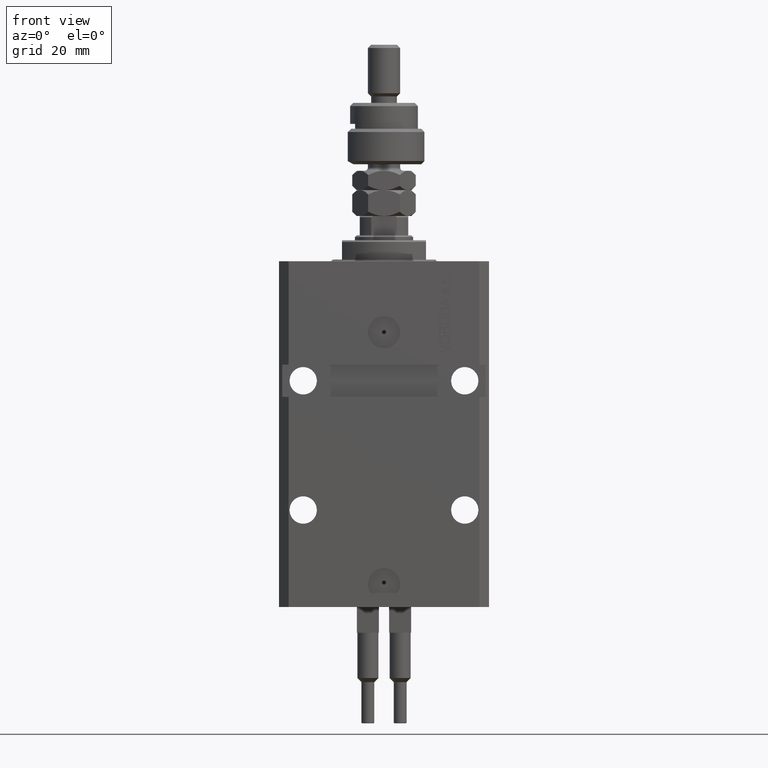
[diagram: clean part render]
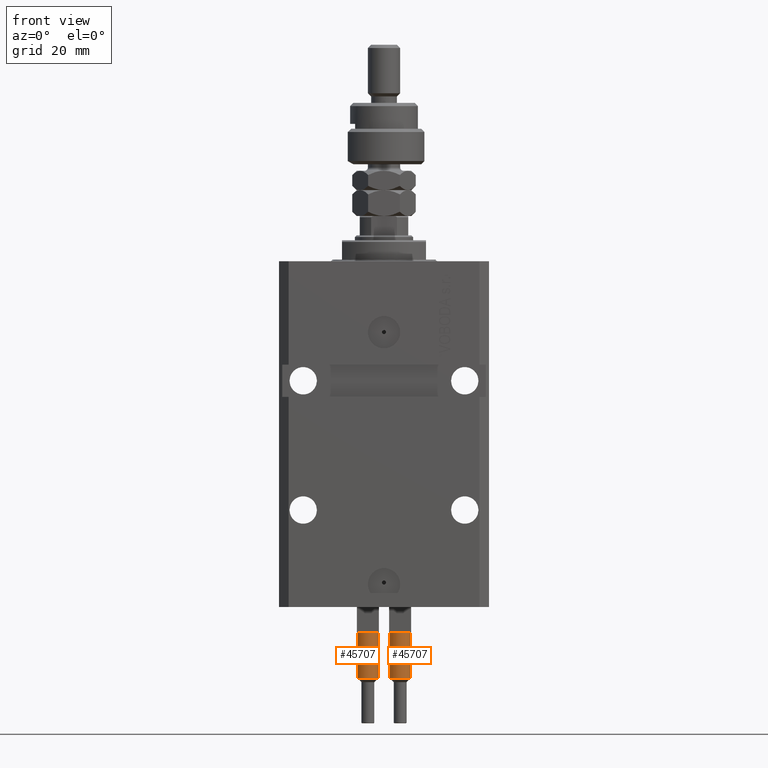
[diagram: same view with one multi-face feature highlighted, each face labeled with its STEP entity id]
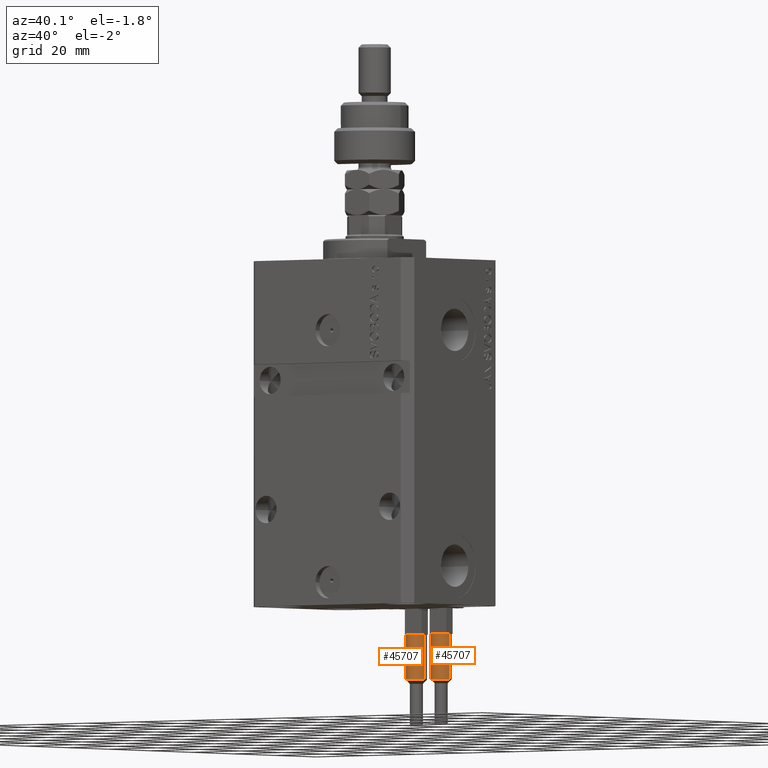
[diagram: same view with one multi-face feature highlighted, each face labeled with its STEP entity id]
A machine part, front view. The highlighted faces form ONE feature: a constant-radius fillet chain: 2 tangent blend faces with common blend radius 3.25 mm. The faces share edges in the B-rep.
A second angle (auxiliary view) of the same feature is appended — it is thin or edge-on in the first view.
Their STEP definitions:
[1] entity #45707 (Cylinder):
#640 = ORIENTED_EDGE ( 'NONE', *, *, #11287, .T. ) ;
#790 = VERTEX_POINT ( 'NONE', #22565 ) ;
#1418 = VERTEX_POINT ( 'NONE', #5297 ) ;
#2662 = CARTESIAN_POINT ( 'NONE',  ( 0.000000000000000000, 0.000000000000000000, 40.00000000000000000 ) ) ;
#2672 = CARTESIAN_POINT ( 'NONE',  ( 3.250000000000000444, 3.980102097228898231E-16, 56.00000000000000000 ) ) ;
#3326 = LINE ( 'NONE', #42943, #11230 ) ;
#4508 = CIRCLE ( 'NONE', #17954, 3.250000000000000444 ) ;
#5297 = CARTESIAN_POINT ( 'NONE',  ( 3.250000000000000444, 3.980102097228898231E-16, 40.00000000000000000 ) ) ;
#5460 = AXIS2_PLACEMENT_3D ( 'NONE', #20788, #16056, #16585 ) ;
#5740 = CARTESIAN_POINT ( 'NONE',  ( 0.000000000000000000, 0.000000000000000000, 56.00000000000000000 ) ) ;
#8593 = VECTOR ( 'NONE', #26794, 1000.000000000000000 ) ;
#9326 = EDGE_CURVE ( 'NONE', #15706, #1418, #22379, .T. ) ;
#11230 = VECTOR ( 'NONE', #26942, 1000.000000000000000 ) ;
#11287 = EDGE_CURVE ( 'NONE', #20690, #1418, #4508, .T. ) ;
#12510 = CARTESIAN_POINT ( 'NONE',  ( 3.250000000000000444, 3.980102097228898231E-16, 53.99999999999998579 ) ) ;
#12687 = DIRECTION ( 'NONE',  ( 1.000000000000000000, 0.000000000000000000, 0.000000000000000000 ) ) ;
#14197 = EDGE_CURVE ( 'NONE', #15706, #49121, #14672, .T. ) ;
#14672 = CIRCLE ( 'NONE', #5460, 3.250000000000000444 ) ;
#15706 = VERTEX_POINT ( 'NONE', #12510 ) ;
#15988 = CARTESIAN_POINT ( 'NONE',  ( 2.883140648667699146, -1.500000000000000000, 40.00000000000000000 ) ) ;
#16056 = DIRECTION ( 'NONE',  ( 0.000000000000000000, 0.000000000000000000, -1.000000000000000000 ) ) ;
#16585 = DIRECTION ( 'NONE',  ( 1.000000000000000000, 0.000000000000000000, 0.000000000000000000 ) ) ;
#17693 = DIRECTION ( 'NONE',  ( 0.000000000000000000, 0.000000000000000000, 1.000000000000000000 ) ) ;
#17844 = EDGE_CURVE ( 'NONE', #30725, #790, #20601, .T. ) ;
#17954 = AXIS2_PLACEMENT_3D ( 'NONE', #39939, #36506, #23423 ) ;
#19025 = EDGE_CURVE ( 'NONE', #790, #20690, #47367, .T. ) ;
#20601 = CIRCLE ( 'NONE', #49031, 3.250000000000000444 ) ;
#20690 = VERTEX_POINT ( 'NONE', #15988 ) ;
#20788 = CARTESIAN_POINT ( 'NONE',  ( 0.000000000000000000, 0.000000000000000000, 53.99999999999998579 ) ) ;
#21758 = DIRECTION ( 'NONE',  ( -1.000000000000000000, 0.000000000000000000, 0.000000000000000000 ) ) ;
#22096 = DIRECTION ( 'NONE',  ( 1.000000000000000000, 0.000000000000000000, 0.000000000000000000 ) ) ;
#22379 = LINE ( 'NONE', #2672, #8593 ) ;
#22565 = CARTESIAN_POINT ( 'NONE',  ( -2.883140648667699146, -1.500000000000000000, 40.00000000000000000 ) ) ;
#23423 = DIRECTION ( 'NONE',  ( 1.000000000000000000, 0.000000000000000000, 0.000000000000000000 ) ) ;
#23644 = EDGE_LOOP ( 'NONE', ( #50450, #36138, #36727, #37573, #43358, #640 ) ) ;
#25682 = CYLINDRICAL_SURFACE ( 'NONE', #30915, 3.250000000000000444 ) ;
#26013 = DIRECTION ( 'NONE',  ( 0.000000000000000000, 0.000000000000000000, 1.000000000000000000 ) ) ;
#26794 = DIRECTION ( 'NONE',  ( -0.000000000000000000, -0.000000000000000000, -1.000000000000000000 ) ) ;
#26942 = DIRECTION ( 'NONE',  ( -0.000000000000000000, -0.000000000000000000, -1.000000000000000000 ) ) ;
#29590 = FACE_OUTER_BOUND ( 'NONE', #23644, .T. ) ;
#30725 = VERTEX_POINT ( 'NONE', #31649 ) ;
#30915 = AXIS2_PLACEMENT_3D ( 'NONE', #5740, #46377, #21758 ) ;
#31649 = CARTESIAN_POINT ( 'NONE',  ( -3.250000000000000444, 0.000000000000000000, 40.00000000000000000 ) ) ;
#35671 = AXIS2_PLACEMENT_3D ( 'NONE', #2662, #26013, #22096 ) ;
#36138 = ORIENTED_EDGE ( 'NONE', *, *, #14197, .T. ) ;
#36506 = DIRECTION ( 'NONE',  ( 0.000000000000000000, 0.000000000000000000, 1.000000000000000000 ) ) ;
#36727 = ORIENTED_EDGE ( 'NONE', *, *, #48099, .T. ) ;
#37368 = CARTESIAN_POINT ( 'NONE',  ( 0.000000000000000000, 0.000000000000000000, 40.00000000000000000 ) ) ;
#37573 = ORIENTED_EDGE ( 'NONE', *, *, #17844, .T. ) ;
#39939 = CARTESIAN_POINT ( 'NONE',  ( 0.000000000000000000, 0.000000000000000000, 40.00000000000000000 ) ) ;
#42943 = CARTESIAN_POINT ( 'NONE',  ( -3.250000000000000444, 0.000000000000000000, 56.00000000000000000 ) ) ;
#43358 = ORIENTED_EDGE ( 'NONE', *, *, #19025, .T. ) ;
#45707 = ADVANCED_FACE ( 'NONE', ( #29590 ), #25682, .T. ) ;
#46377 = DIRECTION ( 'NONE',  ( -0.000000000000000000, -0.000000000000000000, -1.000000000000000000 ) ) ;
#47367 = CIRCLE ( 'NONE', #35671, 3.250000000000000444 ) ;
#48099 = EDGE_CURVE ( 'NONE', #49121, #30725, #3326, .T. ) ;
#49031 = AXIS2_PLACEMENT_3D ( 'NONE', #37368, #17693, #12687 ) ;
#49121 = VERTEX_POINT ( 'NONE', #49721 ) ;
#49721 = CARTESIAN_POINT ( 'NONE',  ( -3.250000000000000444, 0.000000000000000000, 53.99999999999998579 ) ) ;
#50450 = ORIENTED_EDGE ( 'NONE', *, *, #9326, .F. ) ;
[2] entity #45707 (Cylinder):
#640 = ORIENTED_EDGE ( 'NONE', *, *, #11287, .T. ) ;
#790 = VERTEX_POINT ( 'NONE', #22565 ) ;
#1418 = VERTEX_POINT ( 'NONE', #5297 ) ;
#2662 = CARTESIAN_POINT ( 'NONE',  ( 0.000000000000000000, 0.000000000000000000, 40.00000000000000000 ) ) ;
#2672 = CARTESIAN_POINT ( 'NONE',  ( 3.250000000000000444, 3.980102097228898231E-16, 56.00000000000000000 ) ) ;
#3326 = LINE ( 'NONE', #42943, #11230 ) ;
#4508 = CIRCLE ( 'NONE', #17954, 3.250000000000000444 ) ;
#5297 = CARTESIAN_POINT ( 'NONE',  ( 3.250000000000000444, 3.980102097228898231E-16, 40.00000000000000000 ) ) ;
#5460 = AXIS2_PLACEMENT_3D ( 'NONE', #20788, #16056, #16585 ) ;
#5740 = CARTESIAN_POINT ( 'NONE',  ( 0.000000000000000000, 0.000000000000000000, 56.00000000000000000 ) ) ;
#8593 = VECTOR ( 'NONE', #26794, 1000.000000000000000 ) ;
#9326 = EDGE_CURVE ( 'NONE', #15706, #1418, #22379, .T. ) ;
#11230 = VECTOR ( 'NONE', #26942, 1000.000000000000000 ) ;
#11287 = EDGE_CURVE ( 'NONE', #20690, #1418, #4508, .T. ) ;
#12510 = CARTESIAN_POINT ( 'NONE',  ( 3.250000000000000444, 3.980102097228898231E-16, 53.99999999999998579 ) ) ;
#12687 = DIRECTION ( 'NONE',  ( 1.000000000000000000, 0.000000000000000000, 0.000000000000000000 ) ) ;
#14197 = EDGE_CURVE ( 'NONE', #15706, #49121, #14672, .T. ) ;
#14672 = CIRCLE ( 'NONE', #5460, 3.250000000000000444 ) ;
#15706 = VERTEX_POINT ( 'NONE', #12510 ) ;
#15988 = CARTESIAN_POINT ( 'NONE',  ( 2.883140648667699146, -1.500000000000000000, 40.00000000000000000 ) ) ;
#16056 = DIRECTION ( 'NONE',  ( 0.000000000000000000, 0.000000000000000000, -1.000000000000000000 ) ) ;
#16585 = DIRECTION ( 'NONE',  ( 1.000000000000000000, 0.000000000000000000, 0.000000000000000000 ) ) ;
#17693 = DIRECTION ( 'NONE',  ( 0.000000000000000000, 0.000000000000000000, 1.000000000000000000 ) ) ;
#17844 = EDGE_CURVE ( 'NONE', #30725, #790, #20601, .T. ) ;
#17954 = AXIS2_PLACEMENT_3D ( 'NONE', #39939, #36506, #23423 ) ;
#19025 = EDGE_CURVE ( 'NONE', #790, #20690, #47367, .T. ) ;
#20601 = CIRCLE ( 'NONE', #49031, 3.250000000000000444 ) ;
#20690 = VERTEX_POINT ( 'NONE', #15988 ) ;
#20788 = CARTESIAN_POINT ( 'NONE',  ( 0.000000000000000000, 0.000000000000000000, 53.99999999999998579 ) ) ;
#21758 = DIRECTION ( 'NONE',  ( -1.000000000000000000, 0.000000000000000000, 0.000000000000000000 ) ) ;
#22096 = DIRECTION ( 'NONE',  ( 1.000000000000000000, 0.000000000000000000, 0.000000000000000000 ) ) ;
#22379 = LINE ( 'NONE', #2672, #8593 ) ;
#22565 = CARTESIAN_POINT ( 'NONE',  ( -2.883140648667699146, -1.500000000000000000, 40.00000000000000000 ) ) ;
#23423 = DIRECTION ( 'NONE',  ( 1.000000000000000000, 0.000000000000000000, 0.000000000000000000 ) ) ;
#23644 = EDGE_LOOP ( 'NONE', ( #50450, #36138, #36727, #37573, #43358, #640 ) ) ;
#25682 = CYLINDRICAL_SURFACE ( 'NONE', #30915, 3.250000000000000444 ) ;
#26013 = DIRECTION ( 'NONE',  ( 0.000000000000000000, 0.000000000000000000, 1.000000000000000000 ) ) ;
#26794 = DIRECTION ( 'NONE',  ( -0.000000000000000000, -0.000000000000000000, -1.000000000000000000 ) ) ;
#26942 = DIRECTION ( 'NONE',  ( -0.000000000000000000, -0.000000000000000000, -1.000000000000000000 ) ) ;
#29590 = FACE_OUTER_BOUND ( 'NONE', #23644, .T. ) ;
#30725 = VERTEX_POINT ( 'NONE', #31649 ) ;
#30915 = AXIS2_PLACEMENT_3D ( 'NONE', #5740, #46377, #21758 ) ;
#31649 = CARTESIAN_POINT ( 'NONE',  ( -3.250000000000000444, 0.000000000000000000, 40.00000000000000000 ) ) ;
#35671 = AXIS2_PLACEMENT_3D ( 'NONE', #2662, #26013, #22096 ) ;
#36138 = ORIENTED_EDGE ( 'NONE', *, *, #14197, .T. ) ;
#36506 = DIRECTION ( 'NONE',  ( 0.000000000000000000, 0.000000000000000000, 1.000000000000000000 ) ) ;
#36727 = ORIENTED_EDGE ( 'NONE', *, *, #48099, .T. ) ;
#37368 = CARTESIAN_POINT ( 'NONE',  ( 0.000000000000000000, 0.000000000000000000, 40.00000000000000000 ) ) ;
#37573 = ORIENTED_EDGE ( 'NONE', *, *, #17844, .T. ) ;
#39939 = CARTESIAN_POINT ( 'NONE',  ( 0.000000000000000000, 0.000000000000000000, 40.00000000000000000 ) ) ;
#42943 = CARTESIAN_POINT ( 'NONE',  ( -3.250000000000000444, 0.000000000000000000, 56.00000000000000000 ) ) ;
#43358 = ORIENTED_EDGE ( 'NONE', *, *, #19025, .T. ) ;
#45707 = ADVANCED_FACE ( 'NONE', ( #29590 ), #25682, .T. ) ;
#46377 = DIRECTION ( 'NONE',  ( -0.000000000000000000, -0.000000000000000000, -1.000000000000000000 ) ) ;
#47367 = CIRCLE ( 'NONE', #35671, 3.250000000000000444 ) ;
#48099 = EDGE_CURVE ( 'NONE', #49121, #30725, #3326, .T. ) ;
#49031 = AXIS2_PLACEMENT_3D ( 'NONE', #37368, #17693, #12687 ) ;
#49121 = VERTEX_POINT ( 'NONE', #49721 ) ;
#49721 = CARTESIAN_POINT ( 'NONE',  ( -3.250000000000000444, 0.000000000000000000, 53.99999999999998579 ) ) ;
#50450 = ORIENTED_EDGE ( 'NONE', *, *, #9326, .F. ) ;